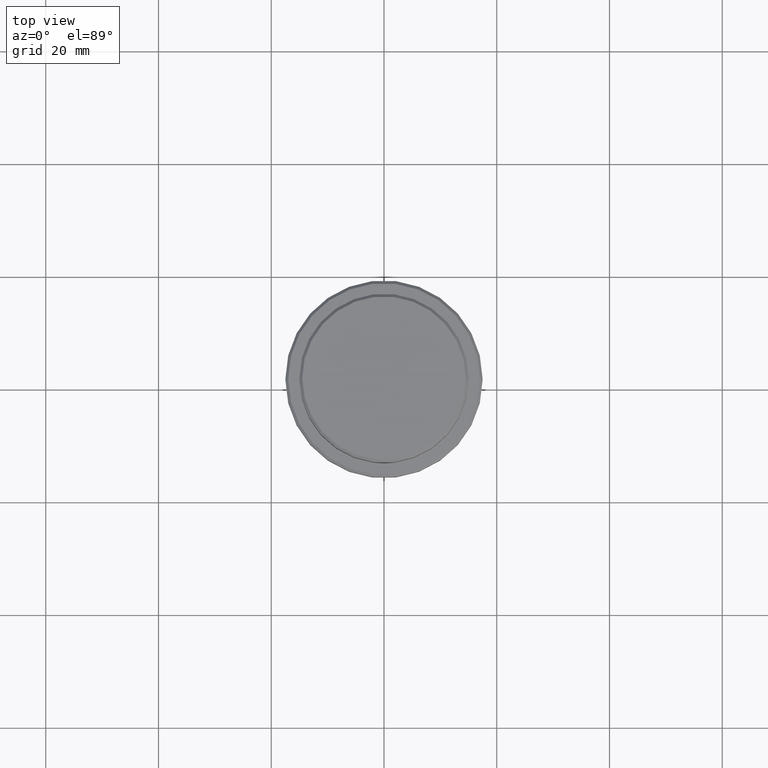
[diagram: clean part render]
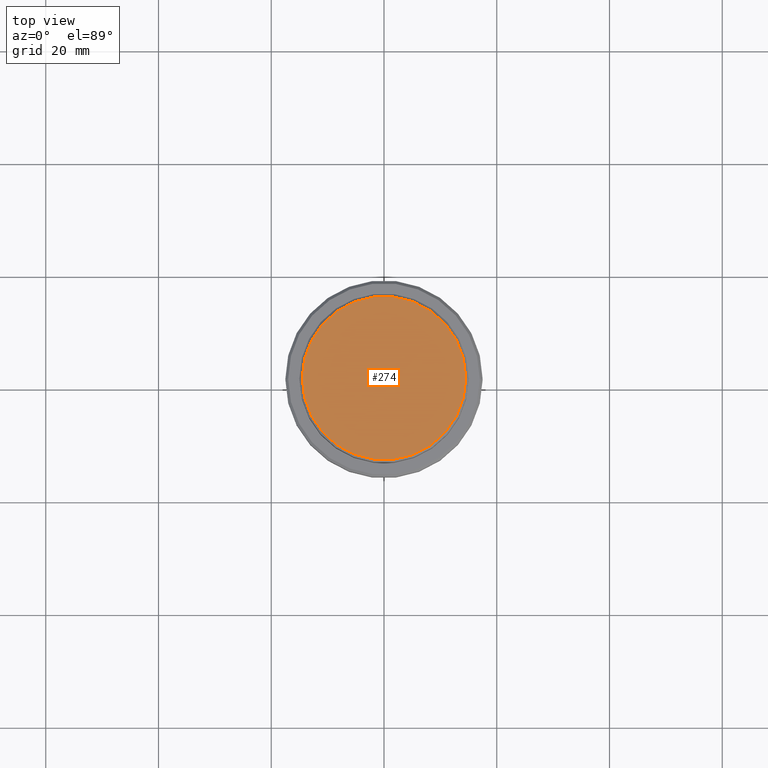
[diagram: same view with one face highlighted and labeled with its STEP entity id]
A machine part, top view. The second image highlights one B-rep face of the part: STEP entity #274.
In plain terms, the highlighted planar face has unit normal (0, -0, 1).
Its self-contained STEP definition (entity closure, byte-faithful):
#1 = CARTESIAN_POINT ( 'NONE',  ( 0.000000000000000000, 0.000000000000000000, 0.000000000000000000 ) ) ;
#61 = CARTESIAN_POINT ( 'NONE',  ( 0.000000000000000000, 0.000000000000000000, 0.000000000000000000 ) ) ;
#69 = DIRECTION ( 'NONE',  ( 1.000000000000000000, 0.000000000000000000, 0.000000000000000000 ) ) ;
#274 = ADVANCED_FACE ( 'NONE', ( #764 ), #757, .T. ) ;
#311 = CARTESIAN_POINT ( 'NONE',  ( 0.000000000000000000, 0.000000000000000000, 0.000000000000000000 ) ) ;
#487 = ORIENTED_EDGE ( 'NONE', *, *, #1140, .T. ) ;
#515 = AXIS2_PLACEMENT_3D ( 'NONE', #61, #738, #69 ) ;
#544 = DIRECTION ( 'NONE',  ( 1.000000000000000000, 0.000000000000000000, 0.000000000000000000 ) ) ;
#558 = CIRCLE ( 'NONE', #515, 14.49999999999999645 ) ;
#573 = CARTESIAN_POINT ( 'NONE',  ( 14.49999999999999645, 1.806354028742345802E-15, 0.000000000000000000 ) ) ;
#641 = ORIENTED_EDGE ( 'NONE', *, *, #1404, .T. ) ;
#709 = VERTEX_POINT ( 'NONE', #736 ) ;
#736 = CARTESIAN_POINT ( 'NONE',  ( -14.49999999999999645, 0.000000000000000000, 0.000000000000000000 ) ) ;
#738 = DIRECTION ( 'NONE',  ( -0.000000000000000000, -0.000000000000000000, 1.000000000000000000 ) ) ;
#757 = PLANE ( 'NONE',  #1057 ) ;
#764 = FACE_OUTER_BOUND ( 'NONE', #1015, .T. ) ;
#787 = VERTEX_POINT ( 'NONE', #573 ) ;
#816 = AXIS2_PLACEMENT_3D ( 'NONE', #311, #1079, #544 ) ;
#842 = DIRECTION ( 'NONE',  ( 1.000000000000000000, 0.000000000000000000, 0.000000000000000000 ) ) ;
#1015 = EDGE_LOOP ( 'NONE', ( #641, #487 ) ) ;
#1057 = AXIS2_PLACEMENT_3D ( 'NONE', #1, #1389, #842 ) ;
#1079 = DIRECTION ( 'NONE',  ( -0.000000000000000000, -0.000000000000000000, 1.000000000000000000 ) ) ;
#1140 = EDGE_CURVE ( 'NONE', #787, #709, #1293, .T. ) ;
#1293 = CIRCLE ( 'NONE', #816, 14.49999999999999645 ) ;
#1389 = DIRECTION ( 'NONE',  ( 0.000000000000000000, -0.000000000000000000, 1.000000000000000000 ) ) ;
#1404 = EDGE_CURVE ( 'NONE', #709, #787, #558, .T. ) ;